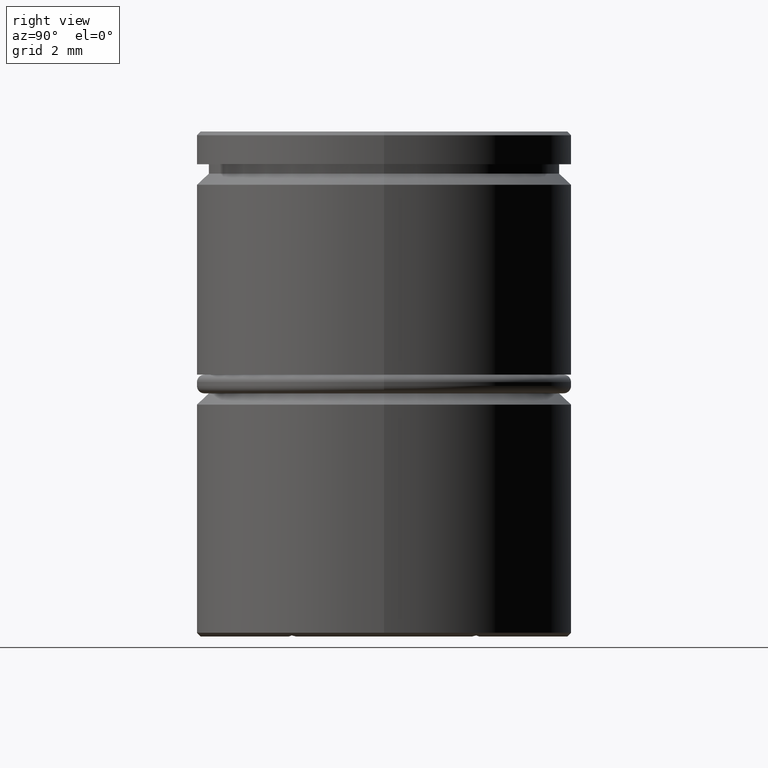
[diagram: clean part render]
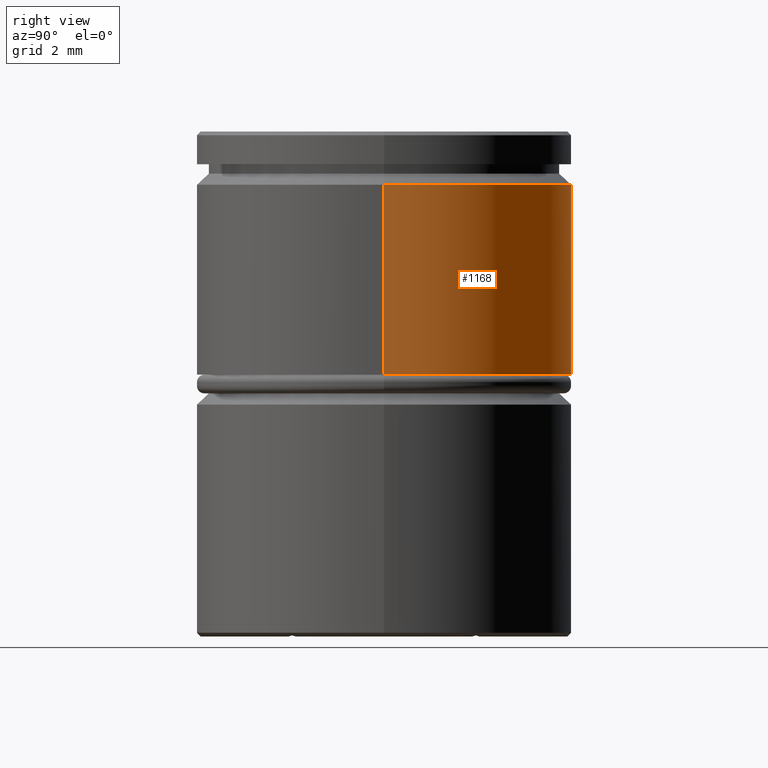
[diagram: same view with one face highlighted and labeled with its STEP entity id]
A machine part, right view. The second image highlights one B-rep face of the part: STEP entity #1168.
In plain terms, the highlighted cylindrical surface (partial cylindrical patch) has radius 5 mm, axis along (-0, -0, 1).
Its self-contained STEP definition (entity closure, byte-faithful):
#30 = AXIS2_PLACEMENT_3D ( 'NONE', #603, #513, #930 ) ;
#44 = DIRECTION ( 'NONE',  ( -0.000000000000000000, -0.000000000000000000, 1.000000000000000000 ) ) ;
#171 = CARTESIAN_POINT ( 'NONE',  ( 5.000000000000000000, 0.000000000000000000, 0.000000000000000000 ) ) ;
#181 = FACE_OUTER_BOUND ( 'NONE', #1106, .T. ) ;
#189 = VERTEX_POINT ( 'NONE', #783 ) ;
#194 = EDGE_CURVE ( 'NONE', #189, #1326, #479, .T. ) ;
#282 = EDGE_CURVE ( 'NONE', #1326, #402, #445, .T. ) ;
#375 = VERTEX_POINT ( 'NONE', #1144 ) ;
#392 = DIRECTION ( 'NONE',  ( 1.000000000000000000, 0.000000000000000000, 0.000000000000000000 ) ) ;
#393 = EDGE_CURVE ( 'NONE', #375, #189, #770, .T. ) ;
#402 = VERTEX_POINT ( 'NONE', #1348 ) ;
#445 = CIRCLE ( 'NONE', #636, 5.000000000000000000 ) ;
#479 = LINE ( 'NONE', #1097, #1280 ) ;
#513 = DIRECTION ( 'NONE',  ( -0.000000000000000000, -0.000000000000000000, 1.000000000000000000 ) ) ;
#579 = ORIENTED_EDGE ( 'NONE', *, *, #393, .T. ) ;
#595 = LINE ( 'NONE', #171, #637 ) ;
#603 = CARTESIAN_POINT ( 'NONE',  ( 0.000000000000000000, 0.000000000000000000, -6.499999999999999112 ) ) ;
#636 = AXIS2_PLACEMENT_3D ( 'NONE', #1226, #706, #1018 ) ;
#637 = VECTOR ( 'NONE', #1345, 1000.000000000000000 ) ;
#664 = ORIENTED_EDGE ( 'NONE', *, *, #282, .T. ) ;
#706 = DIRECTION ( 'NONE',  ( 0.000000000000000000, 0.000000000000000000, -1.000000000000000000 ) ) ;
#770 = CIRCLE ( 'NONE', #30, 5.000000000000000000 ) ;
#783 = CARTESIAN_POINT ( 'NONE',  ( -5.000000000000000000, 6.123233995736766282E-16, -6.499999999999999112 ) ) ;
#797 = DIRECTION ( 'NONE',  ( -0.000000000000000000, -0.000000000000000000, 1.000000000000000000 ) ) ;
#801 = AXIS2_PLACEMENT_3D ( 'NONE', #1008, #44, #392 ) ;
#827 = EDGE_CURVE ( 'NONE', #375, #402, #595, .T. ) ;
#930 = DIRECTION ( 'NONE',  ( 1.000000000000000000, 0.000000000000000000, 0.000000000000000000 ) ) ;
#948 = ORIENTED_EDGE ( 'NONE', *, *, #827, .F. ) ;
#1008 = CARTESIAN_POINT ( 'NONE',  ( 0.000000000000000000, 0.000000000000000000, 0.000000000000000000 ) ) ;
#1018 = DIRECTION ( 'NONE',  ( 1.000000000000000000, 0.000000000000000000, 0.000000000000000000 ) ) ;
#1074 = CARTESIAN_POINT ( 'NONE',  ( -5.000000000000000000, 6.123233995736766282E-16, -1.425000000000000933 ) ) ;
#1097 = CARTESIAN_POINT ( 'NONE',  ( -5.000000000000000000, 6.123233995736766282E-16, 0.000000000000000000 ) ) ;
#1106 = EDGE_LOOP ( 'NONE', ( #579, #1342, #664, #948 ) ) ;
#1144 = CARTESIAN_POINT ( 'NONE',  ( 5.000000000000000000, 0.000000000000000000, -6.499999999999999112 ) ) ;
#1168 = ADVANCED_FACE ( 'NONE', ( #181 ), #1234, .T. ) ;
#1226 = CARTESIAN_POINT ( 'NONE',  ( 0.000000000000000000, 0.000000000000000000, -1.425000000000000933 ) ) ;
#1234 = CYLINDRICAL_SURFACE ( 'NONE', #801, 5.000000000000000000 ) ;
#1280 = VECTOR ( 'NONE', #797, 1000.000000000000000 ) ;
#1326 = VERTEX_POINT ( 'NONE', #1074 ) ;
#1342 = ORIENTED_EDGE ( 'NONE', *, *, #194, .T. ) ;
#1345 = DIRECTION ( 'NONE',  ( -0.000000000000000000, -0.000000000000000000, 1.000000000000000000 ) ) ;
#1348 = CARTESIAN_POINT ( 'NONE',  ( 5.000000000000000000, 0.000000000000000000, -1.425000000000000933 ) ) ;